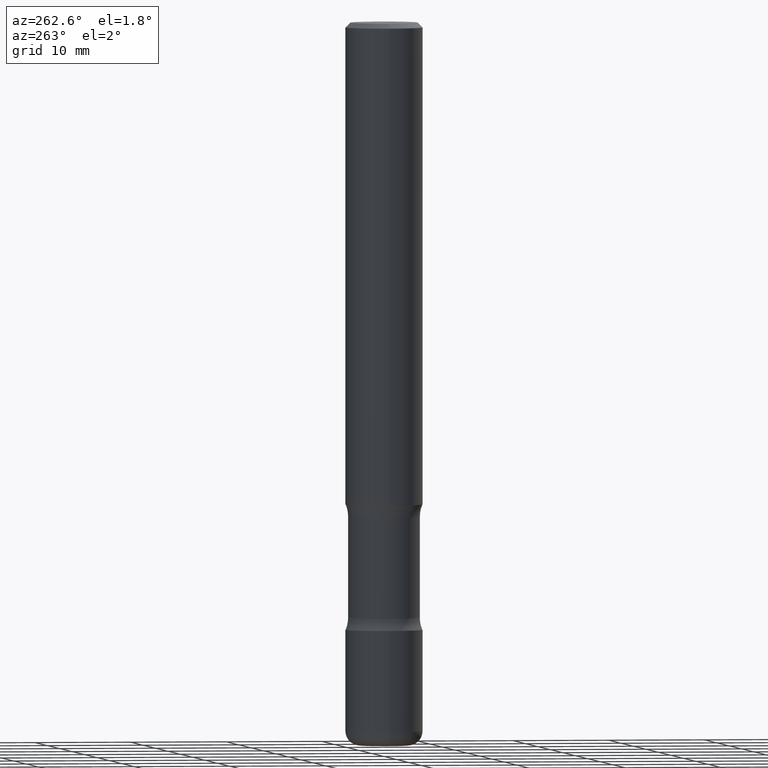
[diagram: clean part render]
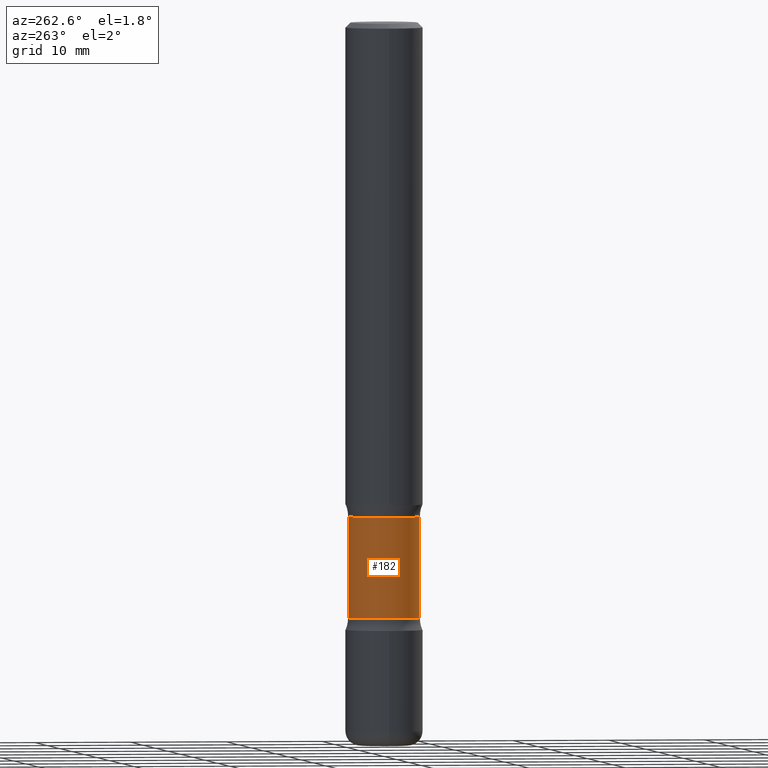
[diagram: same view with one face highlighted and labeled with its STEP entity id]
A machine part, auxiliary view. The second image highlights one B-rep face of the part: STEP entity #182.
In plain terms, the highlighted cylindrical surface (edge-blend (fillet) strip) has radius 3.7427 mm, axis along (0, -0, -1).
Its self-contained STEP definition (entity closure, byte-faithful):
#31 = DIRECTION ( 'NONE',  ( 2.474888810202925163E-29, -3.449350218607033250E-15, -1.000000000000000000 ) ) ;
#45 = ORIENTED_EDGE ( 'NONE', *, *, #390, .F. ) ;
#63 = CARTESIAN_POINT ( 'NONE',  ( -1.010894379971562693E-15, -0.1473500000000103061, -2.952799999999998981 ) ) ;
#70 = CARTESIAN_POINT ( 'NONE',  ( 7.234878300801473340E-29, -1.028974335613649852E-14, -2.952799999999999869 ) ) ;
#89 = DIRECTION ( 'NONE',  ( 6.982962677686265133E-15, 1.000000000000000000, -3.707971487837480522E-15 ) ) ;
#124 = CARTESIAN_POINT ( 'NONE',  ( 4.920957309659253149E-29, -7.064740340351969652E-15, -2.017840424602956428 ) ) ;
#149 = ORIENTED_EDGE ( 'NONE', *, *, #361, .T. ) ;
#154 = DIRECTION ( 'NONE',  ( 2.474888810202925163E-29, -3.449350218607032856E-15, -1.000000000000000000 ) ) ;
#178 = VERTEX_POINT ( 'NONE', #423 ) ;
#182 = ADVANCED_FACE ( 'NONE', ( #463 ), #544, .T. ) ;
#215 = CARTESIAN_POINT ( 'NONE',  ( 1.028939550557143658E-15, 0.1473499999999897114, -2.952800000000000313 ) ) ;
#219 = DIRECTION ( 'NONE',  ( 6.982962677686265133E-15, 1.000000000000000000, -3.707971487837479733E-15 ) ) ;
#220 = CARTESIAN_POINT ( 'NONE',  ( 1.028939550557130839E-15, 0.1473499999999915433, -2.431059575397043648 ) ) ;
#228 = ORIENTED_EDGE ( 'NONE', *, *, #443, .F. ) ;
#233 = VERTEX_POINT ( 'NONE', #341 ) ;
#262 = VERTEX_POINT ( 'NONE', #546 ) ;
#274 = AXIS2_PLACEMENT_3D ( 'NONE', #70, #547, #219 ) ;
#295 = EDGE_CURVE ( 'NONE', #178, #357, #461, .T. ) ;
#341 = CARTESIAN_POINT ( 'NONE',  ( -1.045711407310266063E-15, -0.1473500000000085020, -2.431059575397042760 ) ) ;
#342 = CARTESIAN_POINT ( 'NONE',  ( 5.943628762121094077E-29, -8.490077908476165751E-15, -2.431059575397043204 ) ) ;
#344 = ORIENTED_EDGE ( 'NONE', *, *, #295, .T. ) ;
#357 = VERTEX_POINT ( 'NONE', #220 ) ;
#361 = EDGE_CURVE ( 'NONE', #262, #178, #399, .T. ) ;
#373 = DIRECTION ( 'NONE',  ( 6.982962677686266711E-15, 1.000000000000000000, -3.707971487837479733E-15 ) ) ;
#377 = DIRECTION ( 'NONE',  ( 2.474888810202925163E-29, -3.449350218607032856E-15, -1.000000000000000000 ) ) ;
#380 = AXIS2_PLACEMENT_3D ( 'NONE', #124, #507, #89 ) ;
#390 = EDGE_CURVE ( 'NONE', #233, #357, #438, .T. ) ;
#392 = AXIS2_PLACEMENT_3D ( 'NONE', #342, #31, #373 ) ;
#399 = CIRCLE ( 'NONE', #380, 0.1473499999999999810 ) ;
#416 = LINE ( 'NONE', #63, #459 ) ;
#423 = CARTESIAN_POINT ( 'NONE',  ( 1.028939550557120386E-15, 0.1473499999999929033, -2.017840424602956872 ) ) ;
#438 = CIRCLE ( 'NONE', #392, 0.1473500000000000087 ) ;
#443 = EDGE_CURVE ( 'NONE', #262, #233, #416, .T. ) ;
#444 = EDGE_LOOP ( 'NONE', ( #228, #149, #344, #45 ) ) ;
#459 = VECTOR ( 'NONE', #154, 39.37007874015748143 ) ;
#461 = LINE ( 'NONE', #215, #477 ) ;
#463 = FACE_OUTER_BOUND ( 'NONE', #444, .T. ) ;
#477 = VECTOR ( 'NONE', #377, 39.37007874015748143 ) ;
#507 = DIRECTION ( 'NONE',  ( 2.474888810202925163E-29, -3.449350218607033250E-15, -1.000000000000000000 ) ) ;
#544 = CYLINDRICAL_SURFACE ( 'NONE', #274, 0.1473500000000000087 ) ;
#546 = CARTESIAN_POINT ( 'NONE',  ( -1.045711407310277305E-15, -0.1473500000000070587, -2.017840424602955984 ) ) ;
#547 = DIRECTION ( 'NONE',  ( 2.474888810202925163E-29, -3.449350218607033250E-15, -1.000000000000000000 ) ) ;